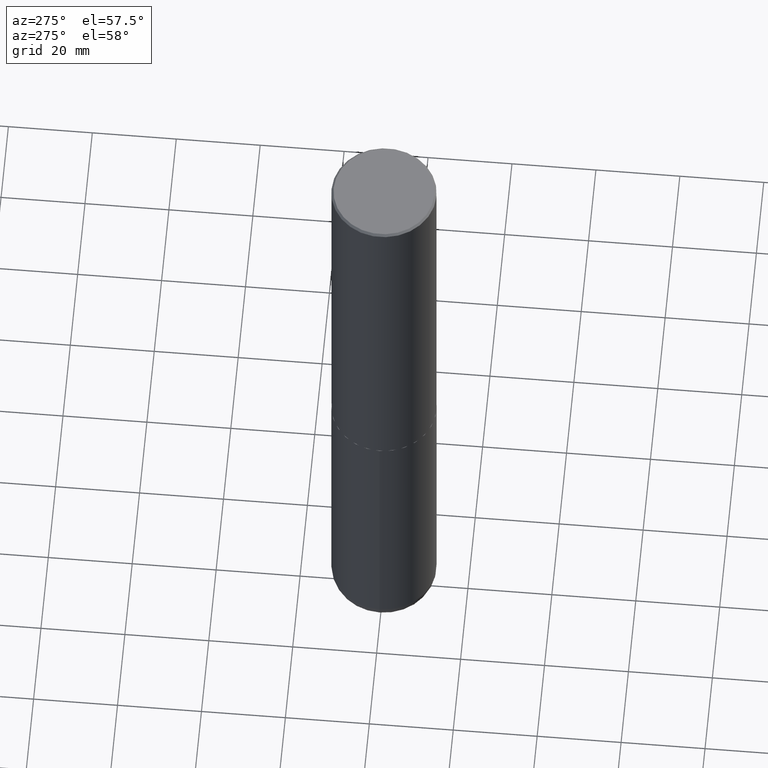
[diagram: clean part render]
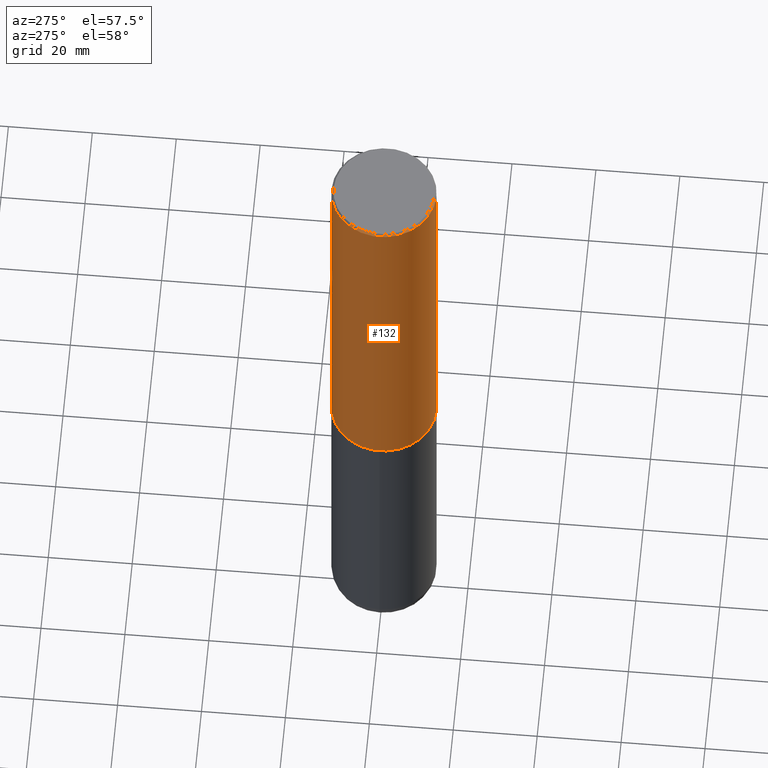
[diagram: same view with one face highlighted and labeled with its STEP entity id]
A machine part, auxiliary view. The second image highlights one B-rep face of the part: STEP entity #132.
In plain terms, the highlighted cylindrical surface (partial cylindrical patch) has radius 12.5006 mm, axis along (-0, 0, 1).
Its self-contained STEP definition (entity closure, byte-faithful):
#7 = VERTEX_POINT ( 'NONE', #363 ) ;
#15 = LINE ( 'NONE', #81, #221 ) ;
#18 = CARTESIAN_POINT ( 'NONE',  ( -3.436665081823296565E-15, -0.4921500000000000874, 1.717974658438411319E-15 ) ) ;
#19 = DIRECTION ( 'NONE',  ( -2.445976594451651952E-29, 3.490754157143982552E-15, 1.000000000000000000 ) ) ;
#26 = CIRCLE ( 'NONE', #311, 0.4921500000000003650 ) ;
#33 = VERTEX_POINT ( 'NONE', #117 ) ;
#34 = AXIS2_PLACEMENT_3D ( 'NONE', #404, #348, #114 ) ;
#44 = CYLINDRICAL_SURFACE ( 'NONE', #151, 0.4921500000000000874 ) ;
#61 = ORIENTED_EDGE ( 'NONE', *, *, #241, .F. ) ;
#81 = CARTESIAN_POINT ( 'NONE',  ( 3.496936074043333291E-15, 0.4921500000000000874, -1.717974658438411319E-15 ) ) ;
#85 = FACE_OUTER_BOUND ( 'NONE', #355, .T. ) ;
#91 = VERTEX_POINT ( 'NONE', #372 ) ;
#100 = VERTEX_POINT ( 'NONE', #406 ) ;
#101 = ORIENTED_EDGE ( 'NONE', *, *, #172, .T. ) ;
#109 = LINE ( 'NONE', #18, #347 ) ;
#111 = CIRCLE ( 'NONE', #34, 0.4921499999999999209 ) ;
#114 = DIRECTION ( 'NONE',  ( -6.982962677686265922E-15, -1.000000000000000000, 3.486624039460257331E-15 ) ) ;
#117 = CARTESIAN_POINT ( 'NONE',  ( -3.376394089603257868E-15, -0.4921499999999999764, -0.01999999999999839059 ) ) ;
#132 = ADVANCED_FACE ( 'NONE', ( #85 ), #44, .T. ) ;
#150 = DIRECTION ( 'NONE',  ( -6.982962677686265922E-15, -1.000000000000000000, 3.330506545156063496E-15 ) ) ;
#151 = AXIS2_PLACEMENT_3D ( 'NONE', #177, #277, #188 ) ;
#172 = EDGE_CURVE ( 'NONE', #100, #33, #109, .T. ) ;
#177 = CARTESIAN_POINT ( 'NONE',  ( 0.000000000000000000, 0.000000000000000000, 0.000000000000000000 ) ) ;
#188 = DIRECTION ( 'NONE',  ( -6.982962677686265922E-15, -1.000000000000000000, 3.490754157143982552E-15 ) ) ;
#217 = EDGE_CURVE ( 'NONE', #91, #7, #15, .T. ) ;
#221 = VECTOR ( 'NONE', #349, 39.37007874015748143 ) ;
#241 = EDGE_CURVE ( 'NONE', #7, #33, #111, .T. ) ;
#252 = ORIENTED_EDGE ( 'NONE', *, *, #217, .F. ) ;
#277 = DIRECTION ( 'NONE',  ( -2.445976594451651952E-29, 3.490754157143982552E-15, 1.000000000000000000 ) ) ;
#279 = CARTESIAN_POINT ( 'NONE',  ( 9.145751084314172604E-29, -1.305227886897706845E-14, -3.739100000000000534 ) ) ;
#280 = EDGE_CURVE ( 'NONE', #91, #100, #26, .T. ) ;
#311 = AXIS2_PLACEMENT_3D ( 'NONE', #279, #19, #150 ) ;
#345 = DIRECTION ( 'NONE',  ( -2.445976594451651672E-29, 3.490754157143982552E-15, 1.000000000000000000 ) ) ;
#347 = VECTOR ( 'NONE', #345, 39.37007874015748143 ) ;
#348 = DIRECTION ( 'NONE',  ( -2.445976594451651952E-29, 3.490754157143982552E-15, 1.000000000000000000 ) ) ;
#349 = DIRECTION ( 'NONE',  ( -2.445976594451651672E-29, 3.490754157143982552E-15, 1.000000000000000000 ) ) ;
#355 = EDGE_LOOP ( 'NONE', ( #252, #393, #101, #61 ) ) ;
#363 = CARTESIAN_POINT ( 'NONE',  ( 3.436665081823295777E-15, 0.4921499999999998098, -0.02000000000000182188 ) ) ;
#372 = CARTESIAN_POINT ( 'NONE',  ( 3.496936074043380229E-15, 0.4921499999999873198, -3.739100000000002311 ) ) ;
#393 = ORIENTED_EDGE ( 'NONE', *, *, #280, .T. ) ;
#404 = CARTESIAN_POINT ( 'NONE',  ( 4.891953188903329688E-31, -6.981508314288001687E-17, -0.02000000000000010797 ) ) ;
#406 = CARTESIAN_POINT ( 'NONE',  ( -3.436665081823207030E-15, -0.4921500000000134101, -3.739099999999998758 ) ) ;